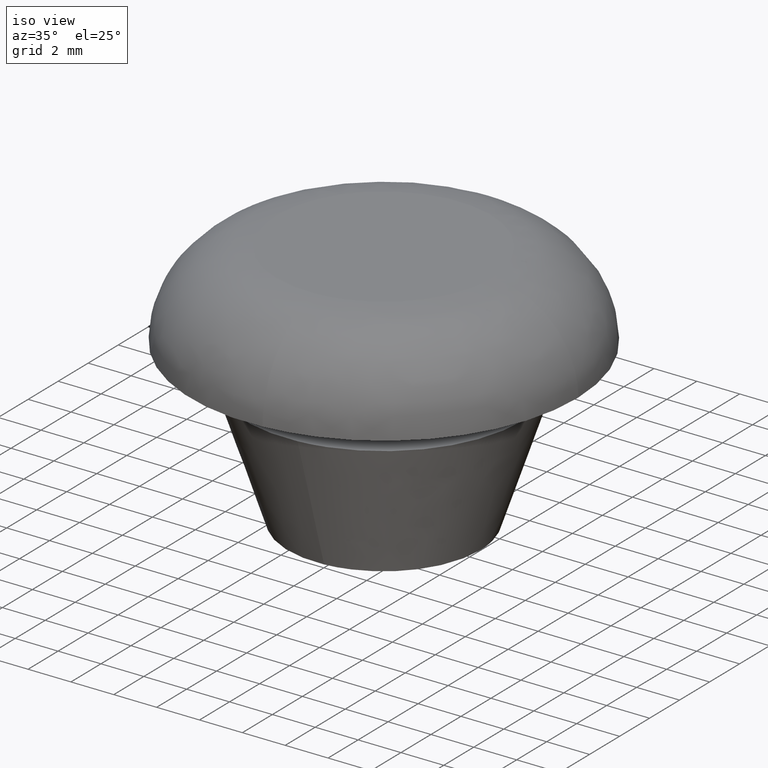
[diagram: clean part render]
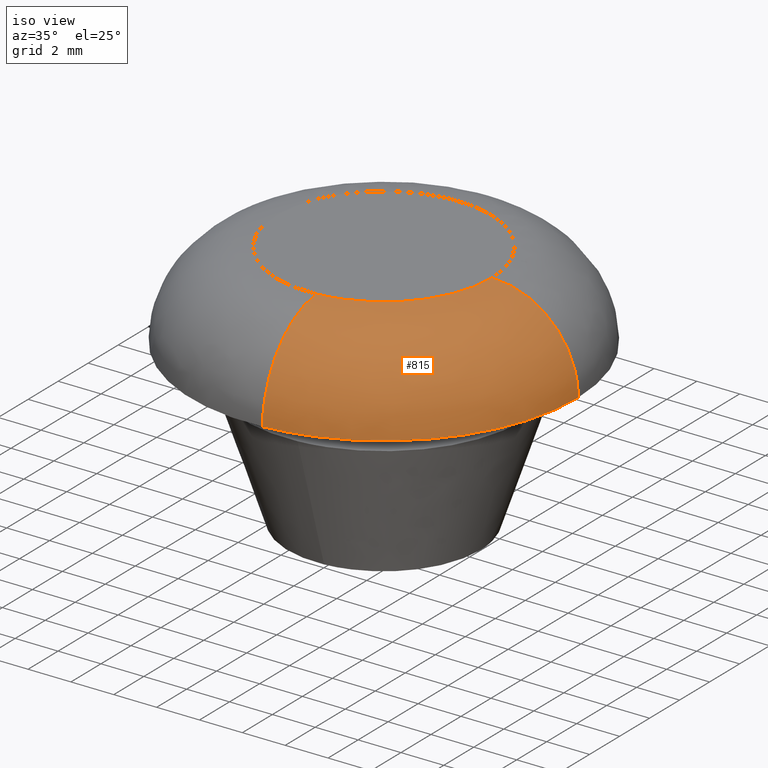
[diagram: same view with one face highlighted and labeled with its STEP entity id]
A machine part, iso view. The second image highlights one B-rep face of the part: STEP entity #815.
In plain terms, the highlighted face is a freeform B-spline surface patch.
Its self-contained STEP definition (entity closure, byte-faithful):
#637=CARTESIAN_POINT('',(0.348666257935958,-4.987828369300749,11.600000000000000));
#638=VERTEX_POINT('',#637);
#656=CARTESIAN_POINT('',(4.999605221082165,0.062830199452536,11.600000000000000));
#657=VERTEX_POINT('',#656);
#673=CARTESIAN_POINT('',(8.999289397834284,0.113094358954944,7.600000000009858));
#674=VERTEX_POINT('',#673);
#675=CARTESIAN_POINT('',(4.999605221082164,0.062830199452536,11.600000000000005));
#676=CARTESIAN_POINT('',(8.999289397814627,0.113094358949919,11.599999999872937));
#677=CARTESIAN_POINT('',(8.999289397834284,0.113094358954943,7.600000000009859));
#685=(BOUNDED_CURVE()B_SPLINE_CURVE(2,(#675,#676,#677),.UNSPECIFIED.,.F.,.U.)B_SPLINE_CURVE_WITH_KNOTS((3,3),(-1.734750791625395,-0.265249208346720),.UNSPECIFIED.)CURVE()GEOMETRIC_REPRESENTATION_ITEM()RATIONAL_B_SPLINE_CURVE((0.889029723564745,0.628638946224060,0.889029723574627))REPRESENTATION_ITEM(''));
#686=EDGE_CURVE('',#657,#674,#685,.T.);
#705=CARTESIAN_POINT('',(0.627599264179879,-8.978091064563827,7.600000000009816));
#706=VERTEX_POINT('',#705);
#722=CARTESIAN_POINT('',(0.348666257935958,-4.987828369300749,11.599999999999996));
#723=CARTESIAN_POINT('',(0.627599264177604,-8.978091064544307,11.599999999795111));
#724=CARTESIAN_POINT('',(0.627599264179879,-8.978091064563827,7.600000000009816));
#732=(BOUNDED_CURVE()B_SPLINE_CURVE(2,(#722,#723,#724),.UNSPECIFIED.,.F.,.U.)B_SPLINE_CURVE_WITH_KNOTS((3,3),(-1.734750791605177,-0.265249208346698),.UNSPECIFIED.)CURVE()GEOMETRIC_REPRESENTATION_ITEM()RATIONAL_B_SPLINE_CURVE((0.869031711856822,0.614498216543253,0.869031711873493))REPRESENTATION_ITEM(''));
#733=EDGE_CURVE('',#638,#706,#732,.T.);
#738=CARTESIAN_POINT('',(4.721478320945675,0.059334969729161,11.590317432338562));
#739=CARTESIAN_POINT('',(4.777511503715815,-4.399409324072828,11.590317432338557));
#740=CARTESIAN_POINT('',(0.329270033340139,-4.710356612713833,11.590317432338558));
#741=CARTESIAN_POINT('',(9.309413745347454,0.116991701587606,11.910149075431365));
#742=CARTESIAN_POINT('',(9.419895261181553,-8.674385192290833,11.910149075431363));
#743=CARTESIAN_POINT('',(0.649226950955003,-9.287484896701482,11.910149075431365));
#744=CARTESIAN_POINT('',(8.989607610146154,0.112972687613278,7.321851360532397));
#745=CARTESIAN_POINT('',(9.096293756308588,-8.376394182386441,7.321851360532398));
#746=CARTESIAN_POINT('',(0.626924068331786,-8.968432082872154,7.321851360532400));
#754=(BOUNDED_SURFACE()B_SPLINE_SURFACE(2,2,((#738,#741,#744),(#739,#742,#745),(#740,#743,#746)),.UNSPECIFIED.,.F.,.F.,.U.)B_SPLINE_SURFACE_WITH_KNOTS((3,3),(3,3),(0.0,14.295895380395351),(0.0,7.289496406772124),.UNSPECIFIED.)GEOMETRIC_REPRESENTATION_ITEM()RATIONAL_B_SPLINE_SURFACE(((0.916342144609695,0.601326536800914,0.916342121375969),(0.658687360351305,0.432247050476211,0.658687343650380),(0.895729761869024,0.587800177894938,0.895729739157922)))REPRESENTATION_ITEM('')SURFACE());
#755=CARTESIAN_POINT('',(5.0,0.0,11.600000000000000));
#756=VERTEX_POINT('',#755);
#757=CARTESIAN_POINT('',(5.0,0.0,11.600000000000000));
#758=CARTESIAN_POINT('',(4.999999999999999,-4.662684236236403,11.600000000000001));
#759=CARTESIAN_POINT('',(0.348666257935958,-4.987828369300749,11.600000000000000));
#767=(BOUNDED_CURVE()B_SPLINE_CURVE(2,(#757,#758,#759),.UNSPECIFIED.,.F.,.U.)B_SPLINE_CURVE_WITH_KNOTS((3,3),(0.500000000000000,0.737833686531577),.UNSPECIFIED.)CURVE()GEOMETRIC_REPRESENTATION_ITEM()RATIONAL_B_SPLINE_CURVE((1.0,0.721360504037987,0.972879876379541))REPRESENTATION_ITEM(''));
#768=EDGE_CURVE('',#756,#638,#767,.T.);
#769=ORIENTED_EDGE('',*,*,#768,.T.);
#770=ORIENTED_EDGE('',*,*,#733,.T.);
#771=CARTESIAN_POINT('',(9.0,0.0,7.600000000000000));
#772=VERTEX_POINT('',#771);
#773=CARTESIAN_POINT('',(9.0,0.0,7.600000000000000));
#774=CARTESIAN_POINT('',(9.000000000000002,-8.392831625397912,7.600000000000000));
#775=CARTESIAN_POINT('',(0.627599264179879,-8.978091064563827,7.600000000009816));
#783=(BOUNDED_CURVE()B_SPLINE_CURVE(2,(#773,#774,#775),.UNSPECIFIED.,.F.,.U.)B_SPLINE_CURVE_WITH_KNOTS((3,3),(0.500000000000000,0.737833686535101),.UNSPECIFIED.)CURVE()GEOMETRIC_REPRESENTATION_ITEM()RATIONAL_B_SPLINE_CURVE((1.0,0.721360504033859,0.972879876386995))REPRESENTATION_ITEM(''));
#784=EDGE_CURVE('',#772,#706,#783,.T.);
#785=ORIENTED_EDGE('',*,*,#784,.F.);
#786=CARTESIAN_POINT('',(8.999289397834284,0.113094358954944,7.600000000009858));
#787=CARTESIAN_POINT('',(9.0,0.056549411931782,7.600000000000000));
#788=CARTESIAN_POINT('',(9.0,0.0,7.600000000000000));
#796=(BOUNDED_CURVE()B_SPLINE_CURVE(2,(#786,#787,#788),.UNSPECIFIED.,.F.,.U.)B_SPLINE_CURVE_WITH_KNOTS((3,3),(0.497784295921542,0.500000000000000),.UNSPECIFIED.)CURVE()GEOMETRIC_REPRESENTATION_ITEM()RATIONAL_B_SPLINE_CURVE((0.994854295643583,0.997404141202089,1.0))REPRESENTATION_ITEM(''));
#797=EDGE_CURVE('',#674,#772,#796,.T.);
#798=ORIENTED_EDGE('',*,*,#797,.F.);
#799=ORIENTED_EDGE('',*,*,#686,.F.);
#800=CARTESIAN_POINT('',(4.999605221082165,0.062830199452536,11.599999999999996));
#801=CARTESIAN_POINT('',(5.000000000000001,0.031416339994430,11.600000000000005));
#802=CARTESIAN_POINT('',(5.0,0.0,11.600000000000000));
#810=(BOUNDED_CURVE()B_SPLINE_CURVE(2,(#800,#801,#802),.UNSPECIFIED.,.F.,.U.)B_SPLINE_CURVE_WITH_KNOTS((3,3),(0.497784295919267,0.500000000000000),.UNSPECIFIED.)CURVE()GEOMETRIC_REPRESENTATION_ITEM()RATIONAL_B_SPLINE_CURVE((0.994854295638349,0.997404141199425,1.0))REPRESENTATION_ITEM(''));
#811=EDGE_CURVE('',#657,#756,#810,.T.);
#812=ORIENTED_EDGE('',*,*,#811,.T.);
#813=EDGE_LOOP('',(#769,#770,#785,#798,#799,#812));
#814=FACE_OUTER_BOUND('',#813,.T.);
#815=ADVANCED_FACE('',(#814),#754,.T.);